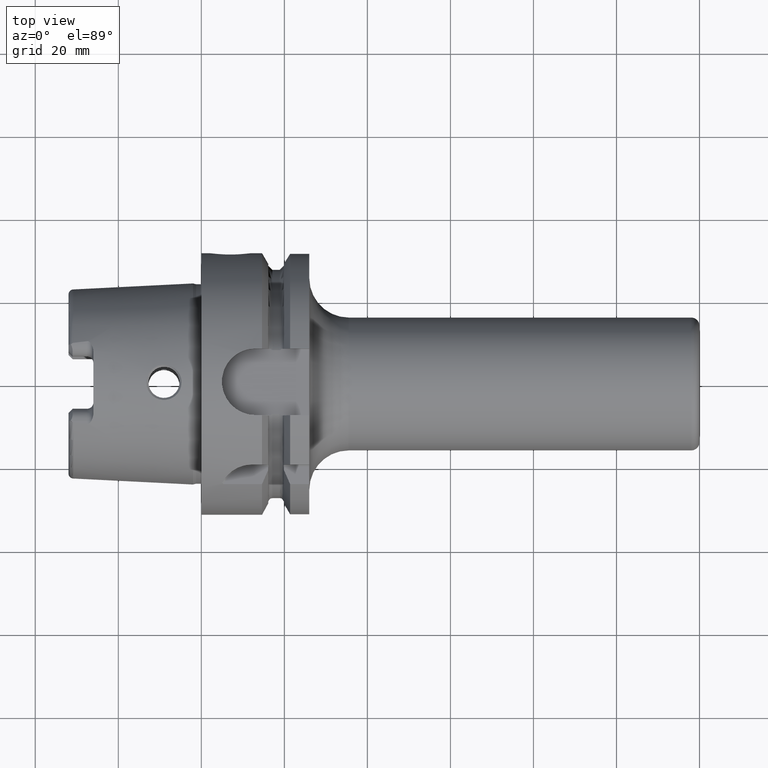
[diagram: clean part render]
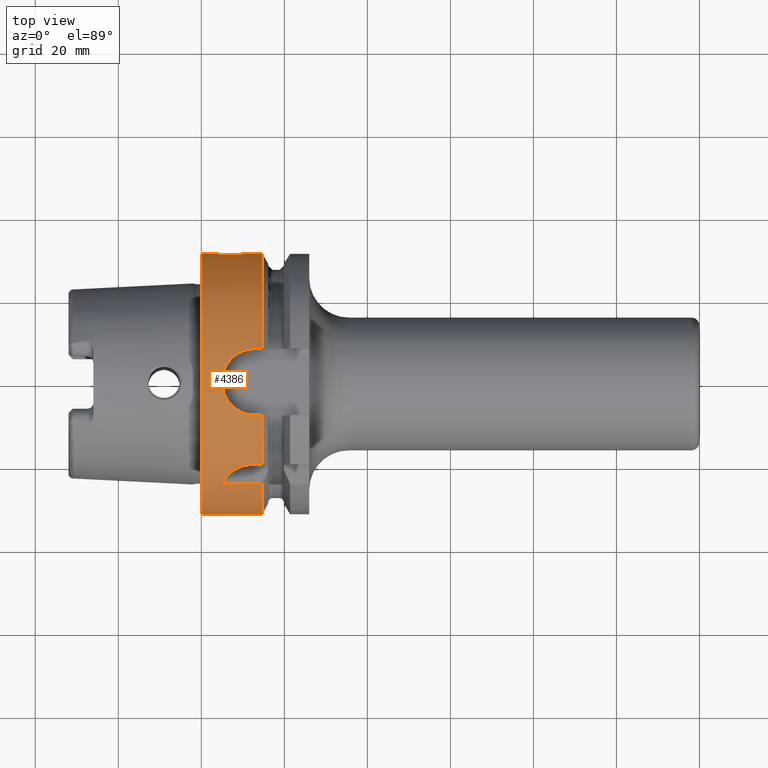
[diagram: same view with one face highlighted and labeled with its STEP entity id]
A machine part, top view. The second image highlights one B-rep face of the part: STEP entity #4386.
In plain terms, the highlighted cylindrical surface (partial cylindrical patch) has radius 31.5 mm, axis along (1, 0, 0).
Its self-contained STEP definition (entity closure, byte-faithful):
#1068=CARTESIAN_POINT('',(-1.421085471520E-14,0.E0,0.E0));
#1069=DIRECTION('',(1.E0,0.E0,0.E0));
#1070=DIRECTION('',(0.E0,1.E0,0.E0));
#1071=AXIS2_PLACEMENT_3D('',#1068,#1069,#1070);
#1088=CARTESIAN_POINT('',(5.055280953939E0,-2.412856222307E1,2.025000071719E1));
#1089=CARTESIAN_POINT('',(5.203922975858E0,-2.384570309261E1,2.058703695930E1));
#1090=CARTESIAN_POINT('',(5.532173076798E0,-2.330389811185E1,2.120403265678E1));
#1091=CARTESIAN_POINT('',(6.096196943704E0,-2.257931058132E1,2.197133577912E1));
#1092=CARTESIAN_POINT('',(6.720663761460E0,-2.194020929485E1,2.260770262576E1));
#1093=CARTESIAN_POINT('',(7.403538650806E0,-2.138093627305E1,2.313587798030E1));
#1094=CARTESIAN_POINT('',(8.127595486115E0,-2.090969369163E1,2.356146143823E1));
#1095=CARTESIAN_POINT('',(8.885468985840E0,-2.052416799416E1,2.389720051652E1));
#1096=CARTESIAN_POINT('',(9.676498842341E0,-2.022243837463E1,2.415242961118E1));
#1097=CARTESIAN_POINT('',(1.047995851280E1,-2.000874678948E1,2.432931831120E1));
#1098=CARTESIAN_POINT('',(1.130639266309E1,-1.987868667877E1,2.443545312812E1));
#1099=CARTESIAN_POINT('',(1.185909309251E1,-1.985E1,2.445868966237E1));
#1100=CARTESIAN_POINT('',(1.213701040303E1,-1.985E1,2.445868966237E1));
#1102=DIRECTION('',(1.E0,2.905293196731E-8,-6.510821817001E-8));
#1103=VECTOR('',#1102,9.286887939886E0);
#1104=CARTESIAN_POINT('',(5.335612985355E0,-2.445868993218E1,1.985000060465E1));
#1105=LINE('',#1104,#1103);
#1106=CARTESIAN_POINT('',(1.462250092524E1,0.E0,0.E0));
#1107=DIRECTION('',(1.E0,0.E0,0.E0));
#1108=DIRECTION('',(0.E0,-7.764663384879E-1,6.301587301587E-1));
#1109=AXIS2_PLACEMENT_3D('',#1106,#1107,#1108);
#1111=CARTESIAN_POINT('',(7.E0,3.110064308017E1,5.E0));
#1112=CARTESIAN_POINT('',(6.762289362530E0,3.110064308017E1,5.E0));
#1113=CARTESIAN_POINT('',(6.291638752551E0,3.110604175503E1,4.966603315548E0));
#1114=CARTESIAN_POINT('',(5.590941042085E0,3.113002312530E1,4.815051890973E0));
#1115=CARTESIAN_POINT('',(4.922622791572E0,3.116768162346E1,4.566770855038E0));
#1116=CARTESIAN_POINT('',(4.290278046526E0,3.121652868953E1,4.222399367418E0));
#1117=CARTESIAN_POINT('',(3.717410291985E0,3.127184393545E1,3.794316921940E0));
#1118=CARTESIAN_POINT('',(3.206193230594E0,3.133001984817E1,3.283155949907E0));
#1119=CARTESIAN_POINT('',(2.778140338616E0,3.138511708835E1,2.710581430129E0));
#1120=CARTESIAN_POINT('',(2.433504878656E0,3.143364983629E1,2.077962340417E0));
#1121=CARTESIAN_POINT('',(2.185264531596E0,3.147092658786E1,1.410162050339E0));
#1122=CARTESIAN_POINT('',(2.033388478478E0,3.149467218381E1,7.086038393014E-1));
#1123=CARTESIAN_POINT('',(2.E0,3.15E1,2.377507523918E-1));
#1124=CARTESIAN_POINT('',(2.E0,3.15E1,-1.916034746595E-14));
#1126=CARTESIAN_POINT('',(1.2E1,3.15E1,0.E0));
#1127=CARTESIAN_POINT('',(1.2E1,3.15E1,2.377495474180E-1));
#1128=CARTESIAN_POINT('',(1.196662761645E1,3.149467458654E1,7.086186534272E-1));
#1129=CARTESIAN_POINT('',(1.181460579439E1,3.147090665108E1,1.410624843432E0));
#1130=CARTESIAN_POINT('',(1.156638499402E1,3.143363374637E1,2.078189492676E0));
#1131=CARTESIAN_POINT('',(1.122165706390E1,3.138508950965E1,2.710906952246E0));
#1132=CARTESIAN_POINT('',(1.079359615750E1,3.132999459490E1,3.283389066833E0));
#1133=CARTESIAN_POINT('',(1.028239612207E1,3.127182308878E1,3.794489355038E0));
#1134=CARTESIAN_POINT('',(9.709426385252E0,3.121650334061E1,4.222584855819E0));
#1135=CARTESIAN_POINT('',(9.077222790639E0,3.116767152827E1,4.566838108074E0));
#1136=CARTESIAN_POINT('',(8.408812552891E0,3.113001179404E1,4.815125199641E0));
#1137=CARTESIAN_POINT('',(7.708232303628E0,3.110603996499E1,4.966613968094E0));
#1138=CARTESIAN_POINT('',(7.237659908688E0,3.110064308017E1,5.E0));
#1139=CARTESIAN_POINT('',(7.E0,3.110064308017E1,5.E0));
#1141=CARTESIAN_POINT('',(1.462250092524E1,0.E0,0.E0));
#1142=DIRECTION('',(1.E0,0.E0,0.E0));
#1143=DIRECTION('',(0.E0,1.E0,0.E0));
#1144=AXIS2_PLACEMENT_3D('',#1141,#1142,#1143);
#1146=DIRECTION('',(1.E0,0.E0,0.E0));
#1147=VECTOR('',#1146,1.655000925241E0);
#1148=CARTESIAN_POINT('',(1.29675E1,8.0175E0,3.046259499370E1));
#1149=LINE('',#1148,#1147);
#1150=CARTESIAN_POINT('',(1.29675E1,-8.0175E0,3.046259499370E1));
#1151=CARTESIAN_POINT('',(1.262029466193E1,-8.0175E0,3.046259499370E1));
#1152=CARTESIAN_POINT('',(1.193292082029E1,-7.972856309682E0,3.047439785027E1));
#1153=CARTESIAN_POINT('',(1.091425902188E1,-7.773176787902E0,3.052624418591E1));
#1154=CARTESIAN_POINT('',(9.934126849983E0,-7.445404290975E0,3.060831570964E1));
#1155=CARTESIAN_POINT('',(9.004286205686E0,-6.994846174415E0,3.071501370342E1));
#1156=CARTESIAN_POINT('',(8.138619971222E0,-6.428343040649E0,3.083929437245E1));
#1157=CARTESIAN_POINT('',(7.341033244269E0,-5.744094981007E0,3.097488281900E1));
#1158=CARTESIAN_POINT('',(6.636610015904E0,-4.956823973346E0,3.111134005505E1));
#1159=CARTESIAN_POINT('',(6.043298615168E0,-4.087231355503E0,3.123817795333E1));
#1160=CARTESIAN_POINT('',(5.564354260648E0,-3.139626798488E0,3.134839057540E1));
#1161=CARTESIAN_POINT('',(5.208675508384E0,-2.115659667041E0,3.143476377212E1));
#1162=CARTESIAN_POINT('',(4.995564432998E0,-1.053473182399E0,3.148835416009E1));
#1163=CARTESIAN_POINT('',(4.927168873806E0,9.826508337445E-4,3.150583538732E1));
#1164=CARTESIAN_POINT('',(4.995760366771E0,1.054869977933E0,3.148830421554E1));
#1165=CARTESIAN_POINT('',(5.209100296272E0,2.117206961075E0,3.143465845843E1));
#1166=CARTESIAN_POINT('',(5.564768023101E0,3.140504656583E0,3.134829355759E1));
#1167=CARTESIAN_POINT('',(6.043465163200E0,4.087475455639E0,3.123814225608E1));
#1168=CARTESIAN_POINT('',(6.636650004810E0,4.956867733051E0,3.111133228169E1));
#1169=CARTESIAN_POINT('',(7.340978157719E0,5.744022439956E0,3.097489453754E1));
#1170=CARTESIAN_POINT('',(8.138191392118E0,6.427992830706E0,3.083936557780E1));
#1171=CARTESIAN_POINT('',(9.003473595842E0,6.994378480458E0,3.071512050332E1));
#1172=CARTESIAN_POINT('',(9.933336680083E0,7.445092599368E0,3.060839241432E1));
#1173=CARTESIAN_POINT('',(1.091365443769E1,7.773025904739E0,3.052628299010E1));
#1174=CARTESIAN_POINT('',(1.193250504209E1,7.972814414214E0,3.047440893684E1));
#1175=CARTESIAN_POINT('',(1.262014082393E1,8.0175E0,3.046259499370E1));
#1176=CARTESIAN_POINT('',(1.29675E1,8.0175E0,3.046259499370E1));
#1178=DIRECTION('',(1.E0,0.E0,0.E0));
#1179=VECTOR('',#1178,1.655000925241E0);
#1180=CARTESIAN_POINT('',(1.29675E1,-8.0175E0,3.046259499370E1));
#1181=LINE('',#1180,#1179);
#1182=CARTESIAN_POINT('',(1.462250092524E1,0.E0,0.E0));
#1183=DIRECTION('',(1.E0,0.E0,0.E0));
#1184=DIRECTION('',(0.E0,-2.545238095238E-1,9.670665077364E-1));
#1185=AXIS2_PLACEMENT_3D('',#1182,#1183,#1184);
#1187=DIRECTION('',(1.E0,0.E0,0.E0));
#1188=VECTOR('',#1187,2.485490522210E0);
#1189=CARTESIAN_POINT('',(1.213701040303E1,-1.985E1,2.445868966237E1));
#1190=LINE('',#1189,#1188);
#1200=CARTESIAN_POINT('',(5.335612985355E0,-2.445868993218E1,1.985000060465E1));
#1201=CARTESIAN_POINT('',(5.288536897563E0,-2.440508682723E1,1.991604905347E1));
#1202=CARTESIAN_POINT('',(5.194710350190E0,-2.429648646449E1,2.004876841892E1));
#1203=CARTESIAN_POINT('',(5.101613984819E0,-2.418502887122E1,2.018271879185E1));
#1204=CARTESIAN_POINT('',(5.055280953939E0,-2.412856222307E1,2.025000071719E1));
#1625=DIRECTION('',(-1.E0,0.E0,0.E0));
#1626=VECTOR('',#1625,2.622500925241E0);
#1627=CARTESIAN_POINT('',(1.462250092524E1,3.15E1,0.E0));
#1628=LINE('',#1627,#1626);
#1659=DIRECTION('',(-1.E0,0.E0,1.086605287208E-14));
#1660=VECTOR('',#1659,2.E0);
#1661=CARTESIAN_POINT('',(2.E0,3.15E1,-1.916034746595E-14));
#1662=LINE('',#1661,#1660);
#1663=DIRECTION('',(-1.E0,0.E0,0.E0));
#1664=VECTOR('',#1663,1.462250092524E1);
#1665=CARTESIAN_POINT('',(1.462250092524E1,-3.15E1,0.E0));
#1666=LINE('',#1665,#1664);
#1923=CARTESIAN_POINT('',(1.462250092524E1,-2.445868966237E1,1.985E1));
#2612=CARTESIAN_POINT('',(-1.421085471520E-14,3.15E1,0.E0));
#2613=CARTESIAN_POINT('',(-1.421085471520E-14,-3.15E1,0.E0));
#2614=VERTEX_POINT('',#2612);
#2615=VERTEX_POINT('',#2613);
#2833=CARTESIAN_POINT('',(1.462250092524E1,-3.15E1,0.E0));
#2834=VERTEX_POINT('',#2833);
#2859=CARTESIAN_POINT('',(7.E0,3.110064308017E1,5.E0));
#2860=VERTEX_POINT('',#2859);
#2863=VERTEX_POINT('',#1124);
#2864=VERTEX_POINT('',#1126);
#2865=CARTESIAN_POINT('',(1.462250092524E1,3.15E1,0.E0));
#2866=VERTEX_POINT('',#2865);
#2905=CARTESIAN_POINT('',(1.29675E1,8.0175E0,3.046259499370E1));
#2906=VERTEX_POINT('',#2905);
#2907=CARTESIAN_POINT('',(1.29675E1,-8.0175E0,3.046259499370E1));
#2908=VERTEX_POINT('',#2907);
#2943=VERTEX_POINT('',#1200);
#2944=VERTEX_POINT('',#1204);
#2951=CARTESIAN_POINT('',(1.213701040303E1,-1.985E1,2.445868966237E1));
#2952=VERTEX_POINT('',#2951);
#2965=CARTESIAN_POINT('',(1.462250092524E1,-8.0175E0,3.046259499370E1));
#2966=VERTEX_POINT('',#2965);
#2967=CARTESIAN_POINT('',(1.462250092524E1,8.0175E0,3.046259499370E1));
#2968=VERTEX_POINT('',#2967);
#3025=CARTESIAN_POINT('',(1.462250092524E1,-1.985E1,2.445868966237E1));
#3026=VERTEX_POINT('',#3025);
#3051=VERTEX_POINT('',#1923);
#4348=CARTESIAN_POINT('',(-3.49E1,0.E0,0.E0));
#4349=DIRECTION('',(1.E0,0.E0,0.E0));
#4350=DIRECTION('',(0.E0,-1.E0,0.E0));
#4351=AXIS2_PLACEMENT_3D('',#4348,#4349,#4350);
#4352=CYLINDRICAL_SURFACE('',#4351,3.15E1);
#4354=ORIENTED_EDGE('',*,*,#4353,.F.);
#4356=ORIENTED_EDGE('',*,*,#4355,.F.);
#4358=ORIENTED_EDGE('',*,*,#4357,.T.);
#4360=ORIENTED_EDGE('',*,*,#4359,.T.);
#4362=ORIENTED_EDGE('',*,*,#4361,.T.);
#4363=ORIENTED_EDGE('',*,*,#4337,.F.);
#4365=ORIENTED_EDGE('',*,*,#4364,.F.);
#4367=ORIENTED_EDGE('',*,*,#4366,.F.);
#4369=ORIENTED_EDGE('',*,*,#4368,.F.);
#4371=ORIENTED_EDGE('',*,*,#4370,.F.);
#4373=ORIENTED_EDGE('',*,*,#4372,.T.);
#4375=ORIENTED_EDGE('',*,*,#4374,.F.);
#4377=ORIENTED_EDGE('',*,*,#4376,.F.);
#4379=ORIENTED_EDGE('',*,*,#4378,.T.);
#4381=ORIENTED_EDGE('',*,*,#4380,.T.);
#4383=ORIENTED_EDGE('',*,*,#4382,.F.);
#4384=EDGE_LOOP('',(#4354,#4356,#4358,#4360,#4362,#4363,#4365,#4367,#4369,#4371,
#4373,#4375,#4377,#4379,#4381,#4383));
#4385=FACE_OUTER_BOUND('',#4384,.F.);
#4386=ADVANCED_FACE('',(#4385),#4352,.T.);
#1072=CIRCLE('',#1071,3.15E1);
#1101=B_SPLINE_CURVE_WITH_KNOTS('',3,(#1088,#1089,#1090,#1091,#1092,#1093,#1094,
#1095,#1096,#1097,#1098,#1099,#1100),.UNSPECIFIED.,.F.,.F.,(4,1,1,1,1,1,1,1,1,1,
4),(0.E0,1.E-1,2.E-1,3.E-1,4.E-1,5.E-1,6.E-1,7.E-1,8.E-1,9.E-1,1.E0),
.UNSPECIFIED.);
#1110=CIRCLE('',#1109,3.15E1);
#1125=B_SPLINE_CURVE_WITH_KNOTS('',3,(#1111,#1112,#1113,#1114,#1115,#1116,#1117,
#1118,#1119,#1120,#1121,#1122,#1123,#1124),.UNSPECIFIED.,.F.,.F.,(4,1,1,1,1,1,1,
1,1,1,1,4),(0.E0,9.090909090909E-2,1.818181818182E-1,2.727272727273E-1,
3.636363636364E-1,4.545454545455E-1,5.454545454545E-1,6.363636363636E-1,
7.272727272727E-1,8.181818181818E-1,9.090909090909E-1,1.E0),.UNSPECIFIED.);
#1140=B_SPLINE_CURVE_WITH_KNOTS('',3,(#1126,#1127,#1128,#1129,#1130,#1131,#1132,
#1133,#1134,#1135,#1136,#1137,#1138,#1139),.UNSPECIFIED.,.F.,.F.,(4,1,1,1,1,1,1,
1,1,1,1,4),(0.E0,9.090909090909E-2,1.818181818182E-1,2.727272727273E-1,
3.636363636364E-1,4.545454545455E-1,5.454545454545E-1,6.363636363636E-1,
7.272727272727E-1,8.181818181818E-1,9.090909090909E-1,1.E0),.UNSPECIFIED.);
#1145=CIRCLE('',#1144,3.15E1);
#1177=B_SPLINE_CURVE_WITH_KNOTS('',3,(#1150,#1151,#1152,#1153,#1154,#1155,#1156,
#1157,#1158,#1159,#1160,#1161,#1162,#1163,#1164,#1165,#1166,#1167,#1168,#1169,
#1170,#1171,#1172,#1173,#1174,#1175,#1176),.UNSPECIFIED.,.F.,.F.,(4,1,1,1,1,1,1,
1,1,1,1,1,1,1,1,1,1,1,1,1,1,1,1,1,4),(0.E0,4.166666666667E-2,8.333333333333E-2,
1.25E-1,1.666666666667E-1,2.083333333333E-1,2.5E-1,2.916666666667E-1,
3.333333333333E-1,3.75E-1,4.166666666667E-1,4.583333333333E-1,5.E-1,
5.416666666667E-1,5.833333333333E-1,6.25E-1,6.666666666667E-1,7.083333333333E-1,
7.5E-1,7.916666666667E-1,8.333333333333E-1,8.75E-1,9.166666666667E-1,
9.583333333333E-1,1.E0),.UNSPECIFIED.);
#1186=CIRCLE('',#1185,3.15E1);
#1205=B_SPLINE_CURVE_WITH_KNOTS('',3,(#1200,#1201,#1202,#1203,#1204),
.UNSPECIFIED.,.F.,.F.,(4,1,4),(0.E0,5.E-1,1.E0),.UNSPECIFIED.);
#4337=EDGE_CURVE('',#2614,#2615,#1072,.T.);
#4353=EDGE_CURVE('',#2944,#2952,#1101,.T.);
#4355=EDGE_CURVE('',#2943,#2944,#1205,.T.);
#4357=EDGE_CURVE('',#2943,#3051,#1105,.T.);
#4359=EDGE_CURVE('',#3051,#2834,#1110,.T.);
#4361=EDGE_CURVE('',#2834,#2615,#1666,.T.);
#4364=EDGE_CURVE('',#2863,#2614,#1662,.T.);
#4366=EDGE_CURVE('',#2860,#2863,#1125,.T.);
#4368=EDGE_CURVE('',#2864,#2860,#1140,.T.);
#4370=EDGE_CURVE('',#2866,#2864,#1628,.T.);
#4372=EDGE_CURVE('',#2866,#2968,#1145,.T.);
#4374=EDGE_CURVE('',#2906,#2968,#1149,.T.);
#4376=EDGE_CURVE('',#2908,#2906,#1177,.T.);
#4378=EDGE_CURVE('',#2908,#2966,#1181,.T.);
#4380=EDGE_CURVE('',#2966,#3026,#1186,.T.);
#4382=EDGE_CURVE('',#2952,#3026,#1190,.T.);